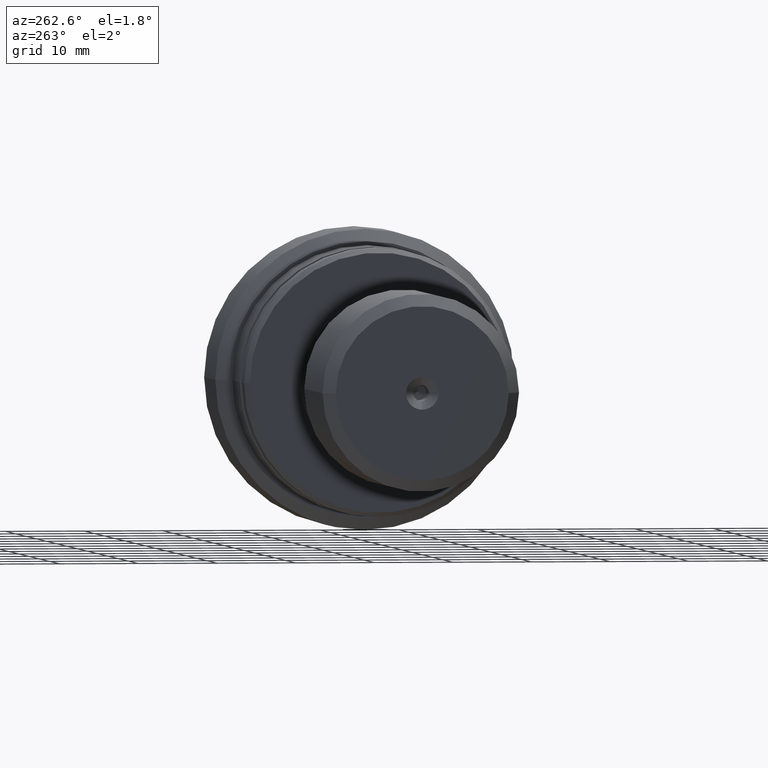
[diagram: clean part render]
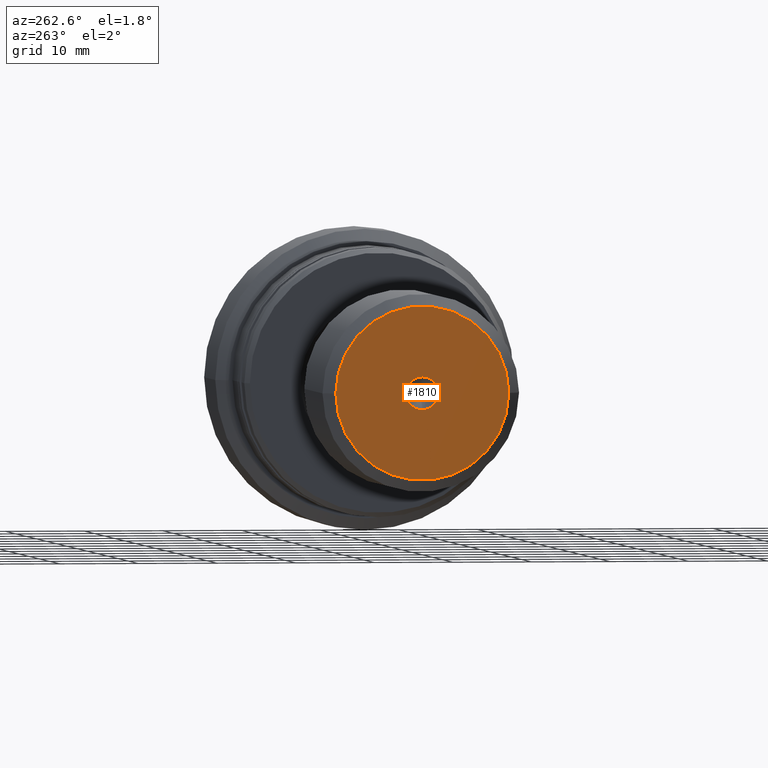
[diagram: same view with one face highlighted and labeled with its STEP entity id]
A machine part, auxiliary view. The second image highlights one B-rep face of the part: STEP entity #1810.
In plain terms, the highlighted planar face has unit normal (-1, -0, 0).
Its self-contained STEP definition (entity closure, byte-faithful):
#81 = CARTESIAN_POINT ( 'NONE',  ( 6.147309118172456842E-16, 0.000000000000000000, 0.000000000000000000 ) ) ;
#145 = PLANE ( 'NONE',  #1123 ) ;
#181 = VERTEX_POINT ( 'NONE', #1874 ) ;
#207 = AXIS2_PLACEMENT_3D ( 'NONE', #2200, #2212, #904 ) ;
#227 = CARTESIAN_POINT ( 'NONE',  ( 1.229461823634491368E-15, 1.314961453745302249E-32, 0.000000000000000000 ) ) ;
#334 = DIRECTION ( 'NONE',  ( 1.069542322069065801E-17, -1.000000000000000000, 0.000000000000000000 ) ) ;
#422 = DIRECTION ( 'NONE',  ( -1.000000000000000000, -1.069542322069065801E-17, -0.000000000000000000 ) ) ;
#497 = EDGE_CURVE ( 'NONE', #1460, #1853, #1526, .T. ) ;
#689 = CARTESIAN_POINT ( 'NONE',  ( 6.147309118172456842E-16, 2.541142108230793077E-16, -2.075000000000028155 ) ) ;
#799 = DIRECTION ( 'NONE',  ( 1.069542322069065647E-17, -1.000000000000000000, 0.000000000000000000 ) ) ;
#800 = ORIENTED_EDGE ( 'NONE', *, *, #1120, .T. ) ;
#811 = DIRECTION ( 'NONE',  ( 1.000000000000000000, 1.069542322069065801E-17, 0.000000000000000000 ) ) ;
#834 = ORIENTED_EDGE ( 'NONE', *, *, #2166, .T. ) ;
#860 = DIRECTION ( 'NONE',  ( -1.000000000000000000, -1.069542322069065801E-17, 0.000000000000000000 ) ) ;
#904 = DIRECTION ( 'NONE',  ( 1.069542322069064722E-17, -1.000000000000000000, 0.000000000000000000 ) ) ;
#976 = DIRECTION ( 'NONE',  ( -1.000000000000000000, -1.069542322069065801E-17, -0.000000000000000000 ) ) ;
#1080 = CIRCLE ( 'NONE', #1530, 2.075000000000028155 ) ;
#1120 = EDGE_CURVE ( 'NONE', #1151, #181, #1476, .T. ) ;
#1123 = AXIS2_PLACEMENT_3D ( 'NONE', #2393, #860, #334 ) ;
#1127 = DIRECTION ( 'NONE',  ( 1.069542322069065647E-17, -1.000000000000000000, 0.000000000000000000 ) ) ;
#1151 = VERTEX_POINT ( 'NONE', #1921 ) ;
#1191 = DIRECTION ( 'NONE',  ( 1.069542322069064722E-17, -1.000000000000000000, 0.000000000000000000 ) ) ;
#1436 = EDGE_LOOP ( 'NONE', ( #834, #800 ) ) ;
#1458 = CARTESIAN_POINT ( 'NONE',  ( 6.147309118172456842E-16, 0.000000000000000000, 2.075000000000028155 ) ) ;
#1460 = VERTEX_POINT ( 'NONE', #689 ) ;
#1476 = CIRCLE ( 'NONE', #2398, 11.00000000000000178 ) ;
#1526 = CIRCLE ( 'NONE', #207, 2.075000000000028155 ) ;
#1530 = AXIS2_PLACEMENT_3D ( 'NONE', #81, #811, #1191 ) ;
#1567 = ORIENTED_EDGE ( 'NONE', *, *, #497, .T. ) ;
#1749 = CIRCLE ( 'NONE', #2023, 11.00000000000000178 ) ;
#1810 = ADVANCED_FACE ( 'NONE', ( #2024, #2386 ), #145, .T. ) ;
#1853 = VERTEX_POINT ( 'NONE', #1458 ) ;
#1874 = CARTESIAN_POINT ( 'NONE',  ( 1.111812168206894135E-15, 11.00000000000000178, 0.000000000000000000 ) ) ;
#1913 = ORIENTED_EDGE ( 'NONE', *, *, #2155, .T. ) ;
#1921 = CARTESIAN_POINT ( 'NONE',  ( 1.347111479062088602E-15, -11.00000000000000178, 1.438959988998140160E-15 ) ) ;
#2023 = AXIS2_PLACEMENT_3D ( 'NONE', #227, #976, #799 ) ;
#2024 = FACE_BOUND ( 'NONE', #2076, .T. ) ;
#2076 = EDGE_LOOP ( 'NONE', ( #1913, #1567 ) ) ;
#2155 = EDGE_CURVE ( 'NONE', #1853, #1460, #1080, .T. ) ;
#2166 = EDGE_CURVE ( 'NONE', #181, #1151, #1749, .T. ) ;
#2200 = CARTESIAN_POINT ( 'NONE',  ( 6.147309118172456842E-16, 0.000000000000000000, 0.000000000000000000 ) ) ;
#2212 = DIRECTION ( 'NONE',  ( 1.000000000000000000, 1.069542322069065801E-17, 0.000000000000000000 ) ) ;
#2265 = CARTESIAN_POINT ( 'NONE',  ( 1.229461823634491368E-15, 1.314961453745302249E-32, 0.000000000000000000 ) ) ;
#2386 = FACE_OUTER_BOUND ( 'NONE', #1436, .T. ) ;
#2393 = CARTESIAN_POINT ( 'NONE',  ( 6.147309118172456842E-16, 6.574807268726511244E-33, 0.000000000000000000 ) ) ;
#2398 = AXIS2_PLACEMENT_3D ( 'NONE', #2265, #422, #1127 ) ;